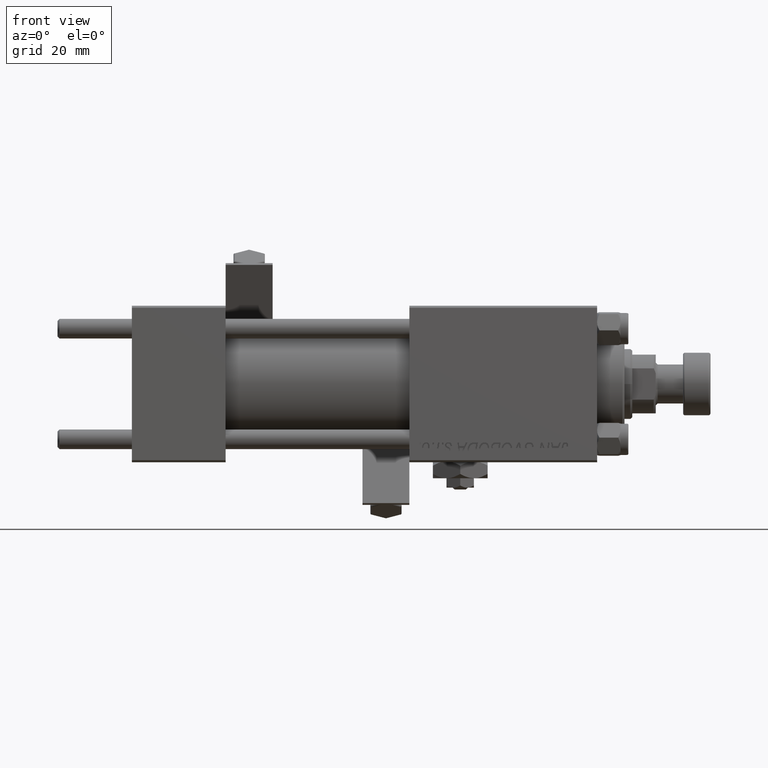
[diagram: clean part render]
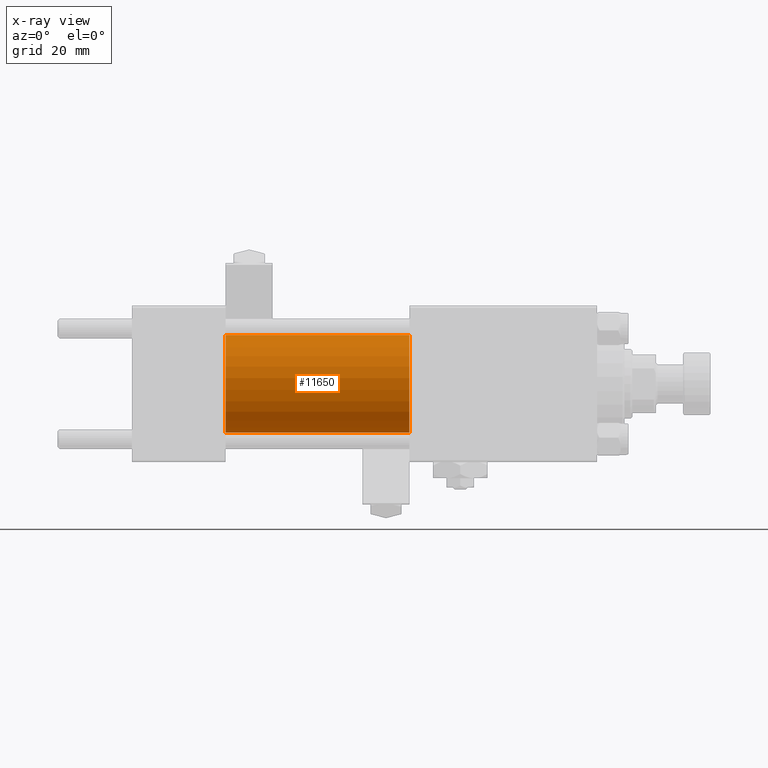
[diagram: x-ray — body ghosted, one internal face saturated and labeled with its STEP entity id]
A machine part, front view, then the same camera in x-ray: the body is ghosted and one INTERNAL B-rep face — a face not visible from any outside direction — is saturated and labeled: STEP entity #11650.
In plain terms, the highlighted cylindrical surface (partial cylindrical patch) has radius 12.5 mm, axis along (-1, -0, -0).
Its self-contained STEP definition (entity closure, byte-faithful):
#2310 = CARTESIAN_POINT ( 'NONE',  ( 24.00000000000000000, 0.000000000000000000, 12.49999999999999645 ) ) ;
#3339 = VERTEX_POINT ( 'NONE', #2310 ) ;
#5051 = FACE_OUTER_BOUND ( 'NONE', #7544, .T. ) ;
#7201 = CIRCLE ( 'NONE', #41460, 12.49999999999999645 ) ;
#7544 = EDGE_LOOP ( 'NONE', ( #32820, #18408, #50947, #18618 ) ) ;
#8020 = VERTEX_POINT ( 'NONE', #16116 ) ;
#8457 = VERTEX_POINT ( 'NONE', #27475 ) ;
#9306 = VERTEX_POINT ( 'NONE', #32967 ) ;
#10054 = DIRECTION ( 'NONE',  ( 0.000000000000000000, 0.000000000000000000, -1.000000000000000000 ) ) ;
#10304 = DIRECTION ( 'NONE',  ( 1.000000000000000000, 0.000000000000000000, 0.000000000000000000 ) ) ;
#11650 = ADVANCED_FACE ( 'NONE', ( #5051 ), #45832, .F. ) ;
#16116 = CARTESIAN_POINT ( 'NONE',  ( 24.00000000000000000, 1.530808498934191127E-15, -12.49999999999999645 ) ) ;
#16209 = EDGE_CURVE ( 'NONE', #9306, #3339, #17789, .T. ) ;
#16334 = CARTESIAN_POINT ( 'NONE',  ( 24.00000000000000000, 0.000000000000000000, 0.000000000000000000 ) ) ;
#17789 = LINE ( 'NONE', #24787, #25969 ) ;
#18408 = ORIENTED_EDGE ( 'NONE', *, *, #36087, .T. ) ;
#18618 = ORIENTED_EDGE ( 'NONE', *, *, #16209, .F. ) ;
#20700 = AXIS2_PLACEMENT_3D ( 'NONE', #36988, #49592, #49856 ) ;
#21221 = EDGE_CURVE ( 'NONE', #9306, #8457, #32025, .T. ) ;
#24787 = CARTESIAN_POINT ( 'NONE',  ( 71.00000000000001421, 0.000000000000000000, 12.49999999999999645 ) ) ;
#25969 = VECTOR ( 'NONE', #29618, 1000.000000000000000 ) ;
#27475 = CARTESIAN_POINT ( 'NONE',  ( 71.00000000000001421, 1.530808498934191127E-15, -12.49999999999999645 ) ) ;
#29618 = DIRECTION ( 'NONE',  ( -1.000000000000000000, -0.000000000000000000, -0.000000000000000000 ) ) ;
#32007 = EDGE_CURVE ( 'NONE', #3339, #8020, #7201, .T. ) ;
#32025 = CIRCLE ( 'NONE', #41474, 12.49999999999999645 ) ;
#32820 = ORIENTED_EDGE ( 'NONE', *, *, #21221, .T. ) ;
#32967 = CARTESIAN_POINT ( 'NONE',  ( 71.00000000000001421, 0.000000000000000000, 12.49999999999999645 ) ) ;
#35412 = LINE ( 'NONE', #40246, #49328 ) ;
#36087 = EDGE_CURVE ( 'NONE', #8457, #8020, #35412, .T. ) ;
#36469 = DIRECTION ( 'NONE',  ( 0.000000000000000000, 0.000000000000000000, -1.000000000000000000 ) ) ;
#36988 = CARTESIAN_POINT ( 'NONE',  ( 71.00000000000001421, 0.000000000000000000, 0.000000000000000000 ) ) ;
#40246 = CARTESIAN_POINT ( 'NONE',  ( 71.00000000000001421, 1.530808498934191127E-15, -12.49999999999999645 ) ) ;
#41460 = AXIS2_PLACEMENT_3D ( 'NONE', #16334, #52845, #36469 ) ;
#41474 = AXIS2_PLACEMENT_3D ( 'NONE', #46804, #10304, #10054 ) ;
#43990 = DIRECTION ( 'NONE',  ( -1.000000000000000000, -0.000000000000000000, -0.000000000000000000 ) ) ;
#45832 = CYLINDRICAL_SURFACE ( 'NONE', #20700, 12.49999999999999645 ) ;
#46804 = CARTESIAN_POINT ( 'NONE',  ( 71.00000000000001421, 0.000000000000000000, 0.000000000000000000 ) ) ;
#49328 = VECTOR ( 'NONE', #43990, 1000.000000000000000 ) ;
#49592 = DIRECTION ( 'NONE',  ( -1.000000000000000000, -0.000000000000000000, -0.000000000000000000 ) ) ;
#49856 = DIRECTION ( 'NONE',  ( 0.000000000000000000, 0.000000000000000000, 1.000000000000000000 ) ) ;
#50947 = ORIENTED_EDGE ( 'NONE', *, *, #32007, .F. ) ;
#52845 = DIRECTION ( 'NONE',  ( 1.000000000000000000, 0.000000000000000000, 0.000000000000000000 ) ) ;